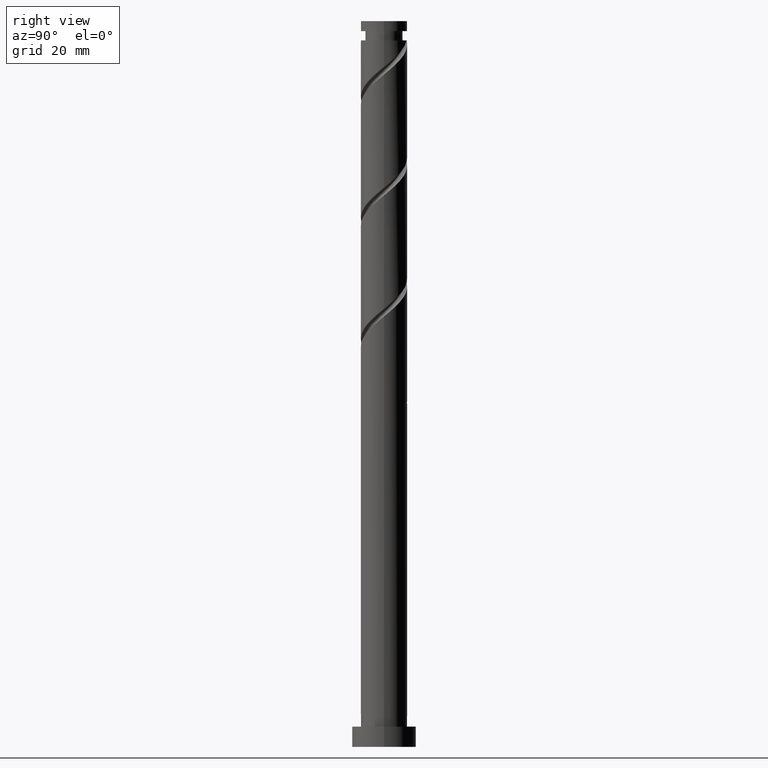
[diagram: clean part render]
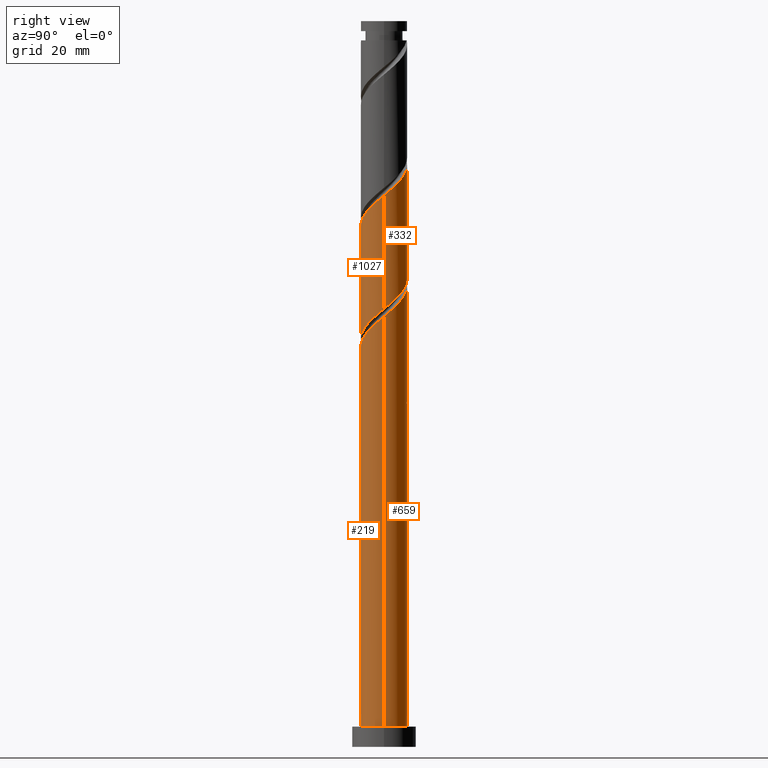
[diagram: same view with one multi-face feature highlighted, each face labeled with its STEP entity id]
A machine part, right view. The highlighted faces form ONE feature: a constant-radius fillet chain: 4 tangent blend faces with common blend radius 8 mm. The faces share edges in the B-rep.
Their STEP definitions:
[1] entity #332 (Cylinder):
#33 = VERTEX_POINT ( 'NONE', #1726 ) ;
#74 = VECTOR ( 'NONE', #1225, 1000.000000000000000 ) ;
#76 = VERTEX_POINT ( 'NONE', #1139 ) ;
#146 = CARTESIAN_POINT ( 'NONE',  ( -1.301061453335721207, 7.953037794909570302, 162.4030830510697001 ) ) ;
#165 = EDGE_LOOP ( 'NONE', ( #429, #693, #274, #861 ) ) ;
#194 = VERTEX_POINT ( 'NONE', #1755 ) ;
#196 = EDGE_CURVE ( 'NONE', #76, #1804, #1370, .T. ) ;
#205 = LINE ( 'NONE', #214, #74 ) ;
#206 = CARTESIAN_POINT ( 'NONE',  ( -4.847993655035590876, 6.437431832132343601, 165.6082112561979329 ) ) ;
#211 = CARTESIAN_POINT ( 'NONE',  ( 6.390495706159073919, 4.812646322924886810, 155.1915445895312757 ) ) ;
#214 = CARTESIAN_POINT ( 'NONE',  ( 8.000000000000000000, 9.797174393178825657E-16, 250.0000000000000000 ) ) ;
#220 = CARTESIAN_POINT ( 'NONE',  ( 5.053057863439632591, 6.202145292455741199, 156.7941086920953921 ) ) ;
#224 = CARTESIAN_POINT ( 'NONE',  ( -8.000000000000000000, 5.623432888515860977E-15, 171.7438254397821424 ) ) ;
#235 = CARTESIAN_POINT ( 'NONE',  ( 1.301061453335727203, 7.953037794909581848, 199.2620574100440933 ) ) ;
#246 = CARTESIAN_POINT ( 'NONE',  ( -0.6400315509080659604, 8.033301356631564971, 200.8646215126081529 ) ) ;
#256 = CARTESIAN_POINT ( 'NONE',  ( 8.000000000000012434, 1.435770099195527774E-15, 189.9213150213316794 ) ) ;
#262 = CARTESIAN_POINT ( 'NONE',  ( 8.000000000000000000, -8.734268103439527594E-15, 150.9104921064488281 ) ) ;
#274 = ORIENTED_EDGE ( 'NONE', *, *, #196, .F. ) ;
#303 = CARTESIAN_POINT ( 'NONE',  ( -8.000000000000012434, 4.905547838918053407E-15, 210.7546483546649938 ) ) ;
#332 = ADVANCED_FACE ( 'NONE', ( #407 ), #979, .T. ) ;
#353 = CARTESIAN_POINT ( 'NONE',  ( -2.233801474206662085, 7.681805189786587107, 163.2043651023517441 ) ) ;
#360 = CARTESIAN_POINT ( 'NONE',  ( 6.974856767235934285, 4.036699660509708742, 154.3902625382492602 ) ) ;
#369 = CARTESIAN_POINT ( 'NONE',  ( 7.738225566650696052, 2.250208024216790559, 152.7876984356850869 ) ) ;
#372 = CARTESIAN_POINT ( 'NONE',  ( 6.247698045502859010, 5.090170940630192042, 194.4543651023517441 ) ) ;
#376 = AXIS2_PLACEMENT_3D ( 'NONE', #721, #1550, #856 ) ;
#383 = CARTESIAN_POINT ( 'NONE',  ( -5.806134645082218881, 5.588592985340075536, 205.6723138203004737 ) ) ;
#390 = CARTESIAN_POINT ( 'NONE',  ( 7.895051195043946812, 1.291575250473281811, 151.9864163844030998 ) ) ;
#403 = CARTESIAN_POINT ( 'NONE',  ( 4.007267575056607356, 6.924002208397983082, 196.8582112561979045 ) ) ;
#407 = FACE_OUTER_BOUND ( 'NONE', #165, .T. ) ;
#429 = ORIENTED_EDGE ( 'NONE', *, *, #577, .F. ) ;
#465 =( BOUNDED_CURVE ( )  B_SPLINE_CURVE ( 2, ( #256, #1637, #941, #820, #1115, #1668, #1366, #372, #1395, #1772, #403, #1506, #676, #235, #833, #246, #502, #797, #1234, #519, #1254, #383, #950, #1516, #1807, #971, #1405, #709, #303 ),
 .UNSPECIFIED., .F., .T. ) 
 B_SPLINE_CURVE_WITH_KNOTS ( ( 3, 2, 2, 2, 2, 2, 2, 2, 2, 2, 2, 2, 2, 2, 3 ),
 ( 0.4295271625973831608, 0.4326923076923077094, 0.4423076923076922906, 0.4519230769230768718, 0.4615384615384615641, 0.4711538461538461453, 0.4807692307692307265, 0.4903846153846154188, 0.5000000000000000000, 0.5096153846153845812, 0.5192307692307691624, 0.5288461538461538547, 0.5384615384615384359, 0.5480769230769231282, 0.5545271625973832164 ),
 .UNSPECIFIED. ) 
 CURVE ( )  GEOMETRIC_REPRESENTATION_ITEM ( )  RATIONAL_B_SPLINE_CURVE ( ( 0.9061636035682792967, 0.9069090390690678349, 0.9090909090909243817, 0.9024626128164281447, 0.9090909090909243817, 0.9024626128164281447, 0.9090909090909243817, 0.9024626128164281447, 0.9090909090909243817, 0.9024626128164281447, 0.9090909090909243817, 0.9024626128164281447, 0.9090909090909243817, 0.9024626128164281447, 0.9090909090909243817, 0.9024626128164281447, 0.9090909090909243817, 0.9024626128164281447, 0.9090909090909243817, 0.9024626128164281447, 0.9090909090909243817, 0.9024626128164281447, 0.9090909090909243817, 0.9024626128164281447, 0.9090909090909243817, 0.9024626128164281447, 0.9090909090909243817, 0.9046444828382846914, 0.9061636035682792967 ) ) 
 REPRESENTATION_ITEM ( '' )  );
#483 = CARTESIAN_POINT ( 'NONE',  ( -7.590945600825408590, 2.525380146692649319, 169.6146215126081813 ) ) ;
#502 = CARTESIAN_POINT ( 'NONE',  ( -1.591979899370593587, 7.840000000000014069, 201.6659035638902537 ) ) ;
#510 = CARTESIAN_POINT ( 'NONE',  ( 7.356541166943314281, 3.143453842363254758, 153.5889804869671593 ) ) ;
#519 = CARTESIAN_POINT ( 'NONE',  ( -4.299981081797050741, 6.815697599571432619, 204.0697497177363857 ) ) ;
#577 = EDGE_CURVE ( 'NONE', #33, #194, #465, .T. ) ;
#614 = VECTOR ( 'NONE', #1649, 1000.000000000000000 ) ;
#624 = CARTESIAN_POINT ( 'NONE',  ( -7.897582266626952396, 1.603672477308133004, 170.4159035638901969 ) ) ;
#653 = CARTESIAN_POINT ( 'NONE',  ( -8.000000000000000000, 0.000000000000000000, 250.0000000000000000 ) ) ;
#676 = CARTESIAN_POINT ( 'NONE',  ( 2.233801474206672744, 7.681805189786598653, 198.4607753587620209 ) ) ;
#685 = CARTESIAN_POINT ( 'NONE',  ( 8.000000000000000000, -8.734268103439527594E-15, 150.9104921064488565 ) ) ;
#693 = ORIENTED_EDGE ( 'NONE', *, *, #1006, .T. ) ;
#709 = CARTESIAN_POINT ( 'NONE',  ( -8.000000000000010658, 0.6500515082963769231, 210.2149476173166533 ) ) ;
#721 = CARTESIAN_POINT ( 'NONE',  ( 0.000000000000000000, 0.000000000000000000, 250.0000000000000000 ) ) ;
#788 = CARTESIAN_POINT ( 'NONE',  ( -8.000000000000001776, 0.3181850426941489340, 171.4796545241491970 ) ) ;
#797 = CARTESIAN_POINT ( 'NONE',  ( -2.543928247833118661, 7.646698643368457837, 202.4671856151722693 ) ) ;
#820 = CARTESIAN_POINT ( 'NONE',  ( 7.897582266626965719, 1.603672477308132560, 191.2492368972235113 ) ) ;
#833 = CARTESIAN_POINT ( 'NONE',  ( 0.3305149512138344514, 7.993169575770573410, 200.0633394613261657 ) ) ;
#856 = DIRECTION ( 'NONE',  ( -1.000000000000000000, 0.000000000000000000, 0.000000000000000000 ) ) ;
#861 = ORIENTED_EDGE ( 'NONE', *, *, #1671, .F. ) ;
#941 = CARTESIAN_POINT ( 'NONE',  ( 7.974729545032094080, 0.6353650002891780835, 190.4479548459415525 ) ) ;
#950 = CARTESIAN_POINT ( 'NONE',  ( -6.390495706159080136, 4.812646322924901909, 206.4735958715825461 ) ) ;
#971 = CARTESIAN_POINT ( 'NONE',  ( -7.738225566650707599, 2.250208024216801217, 208.8774420254286497 ) ) ;
#979 = CYLINDRICAL_SURFACE ( 'NONE', #376, 8.000000000000000000 ) ;
#1006 = EDGE_CURVE ( 'NONE', #33, #1804, #205, .T. ) ;
#1023 = CARTESIAN_POINT ( 'NONE',  ( 1.591979899370595364, 7.839999999999999858, 159.9992368972235397 ) ) ;
#1064 = CARTESIAN_POINT ( 'NONE',  ( 4.299981081797046301, 6.815697599571421961, 157.5953907433774361 ) ) ;
#1086 = CARTESIAN_POINT ( 'NONE',  ( -5.547845850269218282, 5.763801386381266489, 166.4094933074800622 ) ) ;
#1115 = CARTESIAN_POINT ( 'NONE',  ( 7.590945600825421913, 2.525380146692645766, 192.0505189485056121 ) ) ;
#1139 = CARTESIAN_POINT ( 'NONE',  ( -8.000000000000000000, 5.623432888515860977E-15, 171.7438254397821424 ) ) ;
#1225 = DIRECTION ( 'NONE',  ( -0.000000000000000000, -0.000000000000000000, -1.000000000000000000 ) ) ;
#1234 = CARTESIAN_POINT ( 'NONE',  ( -3.421954664815085145, 7.231198121469945228, 203.2684676664543986 ) ) ;
#1254 = CARTESIAN_POINT ( 'NONE',  ( -5.053057863439636144, 6.202145292455754522, 204.8710317690184013 ) ) ;
#1309 = CARTESIAN_POINT ( 'NONE',  ( 2.543928247833120437, 7.646698643368446291, 159.1979548459414673 ) ) ;
#1339 = CARTESIAN_POINT ( 'NONE',  ( -7.974729545032076317, 0.6353650002891837456, 171.2171856151722977 ) ) ;
#1349 = CARTESIAN_POINT ( 'NONE',  ( -4.007267575056594922, 6.924002208397974201, 164.8069292049158889 ) ) ;
#1363 = CARTESIAN_POINT ( 'NONE',  ( 5.806134645082211776, 5.588592985340064878, 155.9928266408133481 ) ) ;
#1366 = CARTESIAN_POINT ( 'NONE',  ( 6.766003490263366338, 4.268629378353683279, 193.6530830510697285 ) ) ;
#1370 =( BOUNDED_CURVE ( )  B_SPLINE_CURVE ( 2, ( #224, #788, #1339, #624, #483, #1619, #1781, #1482, #1086, #206, #1349, #1630, #353, #146, #1573, #1799, #1023, #1309, #1751, #1064, #220, #1363, #211, #360, #510, #369, #390, #1513, #685 ),
 .UNSPECIFIED., .F., .T. ) 
 B_SPLINE_CURVE_WITH_KNOTS ( ( 3, 2, 2, 2, 2, 2, 2, 2, 2, 2, 2, 2, 2, 2, 3 ),
 ( 0.6795271625973833274, 0.6826923076923077094, 0.6923076923076922906, 0.7019230769230768718, 0.7115384615384615641, 0.7211538461538461453, 0.7307692307692307265, 0.7403846153846154188, 0.7500000000000000000, 0.7596153846153845812, 0.7692307692307692735, 0.7788461538461538547, 0.7884615384615384359, 0.7980769230769231282, 0.8045271625973832164 ),
 .UNSPECIFIED. ) 
 CURVE ( )  GEOMETRIC_REPRESENTATION_ITEM ( )  RATIONAL_B_SPLINE_CURVE ( ( 0.9061636035682724133, 0.9069090390690610626, 0.9090909090909177204, 0.9024626128164211503, 0.9090909090909177204, 0.9024626128164211503, 0.9090909090909177204, 0.9024626128164211503, 0.9090909090909177204, 0.9024626128164211503, 0.9090909090909177204, 0.9024626128164211503, 0.9090909090909177204, 0.9024626128164211503, 0.9090909090909177204, 0.9024626128164211503, 0.9090909090909177204, 0.9024626128164211503, 0.9090909090909177204, 0.9024626128164211503, 0.9090909090909177204, 0.9024626128164211503, 0.9090909090909177204, 0.9024626128164211503, 0.9090909090909177204, 0.9024626128164211503, 0.9090909090909177204, 0.9046444828382778081, 0.9061636035682725243 ) ) 
 REPRESENTATION_ITEM ( '' )  );
#1395 = CARTESIAN_POINT ( 'NONE',  ( 5.547845850269232493, 5.763801386381272707, 195.2556471536338734 ) ) ;
#1405 = CARTESIAN_POINT ( 'NONE',  ( -7.895051195043959247, 1.291575250473287140, 209.6787240767107505 ) ) ;
#1482 = CARTESIAN_POINT ( 'NONE',  ( -6.247698045502846576, 5.090170940630189378, 167.2107753587620493 ) ) ;
#1502 = LINE ( 'NONE', #653, #614 ) ;
#1506 = CARTESIAN_POINT ( 'NONE',  ( 3.166541495077610957, 7.410572584663614570, 197.6594933074799485 ) ) ;
#1513 = CARTESIAN_POINT ( 'NONE',  ( 8.000000000000000000, 0.6500515082963715940, 151.4501928437971685 ) ) ;
#1516 = CARTESIAN_POINT ( 'NONE',  ( -6.974856767235942279, 4.036699660509722953, 207.2748779228645901 ) ) ;
#1550 = DIRECTION ( 'NONE',  ( -0.000000000000000000, -0.000000000000000000, -1.000000000000000000 ) ) ;
#1573 = CARTESIAN_POINT ( 'NONE',  ( -0.3305149512138251811, 7.993169575770560975, 161.6018009997876561 ) ) ;
#1619 = CARTESIAN_POINT ( 'NONE',  ( -7.284308935023863896, 3.447087816077163858, 168.8133394613261373 ) ) ;
#1630 = CARTESIAN_POINT ( 'NONE',  ( -3.166541495077603852, 7.410572584663606577, 164.0056471536338165 ) ) ;
#1637 = CARTESIAN_POINT ( 'NONE',  ( 8.000000000000014211, 0.3181850426941276733, 190.1854859369645965 ) ) ;
#1649 = DIRECTION ( 'NONE',  ( -0.000000000000000000, -0.000000000000000000, -1.000000000000000000 ) ) ;
#1668 = CARTESIAN_POINT ( 'NONE',  ( 7.284308935023878107, 3.447087816077164302, 192.8518009997876561 ) ) ;
#1671 = EDGE_CURVE ( 'NONE', #194, #76, #1502, .T. ) ;
#1726 = CARTESIAN_POINT ( 'NONE',  ( 8.000000000000012434, 1.435770099195527774E-15, 189.9213150213316510 ) ) ;
#1751 = CARTESIAN_POINT ( 'NONE',  ( 3.421954664815087366, 7.231198121469931905, 158.3966727946594517 ) ) ;
#1755 = CARTESIAN_POINT ( 'NONE',  ( -8.000000000000012434, 4.905547838918053407E-15, 210.7546483546649938 ) ) ;
#1772 = CARTESIAN_POINT ( 'NONE',  ( 4.847993655035605087, 6.437431832132348042, 196.0569292049158321 ) ) ;
#1781 = CARTESIAN_POINT ( 'NONE',  ( -6.766003490263353903, 4.268629378353675285, 168.0120574100440933 ) ) ;
#1799 = CARTESIAN_POINT ( 'NONE',  ( 0.6400315509080708454, 8.033301356631552537, 160.8005189485056405 ) ) ;
#1804 = VERTEX_POINT ( 'NONE', #262 ) ;
#1807 = CARTESIAN_POINT ( 'NONE',  ( -7.356541166943324050, 3.143453842363264084, 208.0761599741466625 ) ) ;
[2] entity #1027 (Cylinder):
#33 = VERTEX_POINT ( 'NONE', #1726 ) ;
#36 =( BOUNDED_CURVE ( )  B_SPLINE_CURVE ( 2, ( #1469, #1291, #580, #304, #517, #1487, #230, #930, #629, #509, #1345, #795, #1625, #1373, #1205, #1196, #1073, #923, #201, #913, #1614, #381, #1760, #619, #339, #768, #349, #1786, #59 ),
 .UNSPECIFIED., .F., .T. ) 
 B_SPLINE_CURVE_WITH_KNOTS ( ( 3, 2, 2, 2, 2, 2, 2, 2, 2, 2, 2, 2, 2, 2, 3 ),
 ( 0.8045271625973832164, 0.8076923076923077094, 0.8173076923076922906, 0.8269230769230768718, 0.8365384615384615641, 0.8461538461538461453, 0.8557692307692307265, 0.8653846153846154188, 0.8750000000000000000, 0.8846153846153845812, 0.8942307692307692735, 0.9038461538461538547, 0.9134615384615384359, 0.9230769230769231282, 0.9295271625973833274 ),
 .UNSPECIFIED. ) 
 CURVE ( )  GEOMETRIC_REPRESENTATION_ITEM ( )  RATIONAL_B_SPLINE_CURVE ( ( 0.9061636035682725243, 0.9069090390690610626, 0.9090909090909177204, 0.9024626128164211503, 0.9090909090909177204, 0.9024626128164211503, 0.9090909090909177204, 0.9024626128164211503, 0.9090909090909177204, 0.9024626128164211503, 0.9090909090909177204, 0.9024626128164211503, 0.9090909090909177204, 0.9024626128164211503, 0.9090909090909177204, 0.9024626128164211503, 0.9090909090909177204, 0.9024626128164211503, 0.9090909090909177204, 0.9024626128164211503, 0.9090909090909177204, 0.9024626128164211503, 0.9090909090909177204, 0.9024626128164211503, 0.9090909090909177204, 0.9024626128164211503, 0.9090909090909177204, 0.9046444828382775860, 0.9061636035682724133 ) ) 
 REPRESENTATION_ITEM ( '' )  );
#48 = DIRECTION ( 'NONE',  ( -0.000000000000000000, -0.000000000000000000, -1.000000000000000000 ) ) ;
#59 = CARTESIAN_POINT ( 'NONE',  ( -8.000000000000000000, 5.623432888515860977E-15, 130.0771587731154568 ) ) ;
#62 = FACE_OUTER_BOUND ( 'NONE', #680, .T. ) ;
#66 = CARTESIAN_POINT ( 'NONE',  ( -7.284308935023874554, -3.447087816077166966, 172.0184676664543133 ) ) ;
#74 = VECTOR ( 'NONE', #1225, 1000.000000000000000 ) ;
#75 = CARTESIAN_POINT ( 'NONE',  ( 1.591979899370593809, -7.840000000000014069, 180.8325702305568825 ) ) ;
#79 = DIRECTION ( 'NONE',  ( -0.000000000000000000, -0.000000000000000000, -1.000000000000000000 ) ) ;
#84 = LINE ( 'NONE', #937, #1400 ) ;
#106 = CARTESIAN_POINT ( 'NONE',  ( -8.000000000000000000, 5.623432888515860977E-15, 130.0771587731154568 ) ) ;
#190 = CARTESIAN_POINT ( 'NONE',  ( 0.6400315509080670706, -8.033301356631564971, 180.0312881792748101 ) ) ;
#201 = CARTESIAN_POINT ( 'NONE',  ( -3.421954664815082925, -7.231198121469931905, 137.5633394613261373 ) ) ;
#205 = LINE ( 'NONE', #214, #74 ) ;
#210 = CARTESIAN_POINT ( 'NONE',  ( -4.007267575056605580, -6.924002208397983971, 176.0248779228646470 ) ) ;
#214 = CARTESIAN_POINT ( 'NONE',  ( 8.000000000000000000, 9.797174393178825657E-16, 250.0000000000000000 ) ) ;
#218 = CARTESIAN_POINT ( 'NONE',  ( -2.233801474206668303, -7.681805189786598653, 177.6274420254286497 ) ) ;
#230 = CARTESIAN_POINT ( 'NONE',  ( 6.766003490263353903, -4.268629378353677950, 147.1787240767107505 ) ) ;
#231 = ORIENTED_EDGE ( 'NONE', *, *, #1618, .F. ) ;
#238 =( BOUNDED_CURVE ( )  B_SPLINE_CURVE ( 2, ( #948, #1222, #359, #783, #1494, #66, #1635, #1362, #1063, #1082, #210, #637, #218, #775, #1212, #190, #75, #645, #1770, #1230, #756, #500, #1749, #1777, #1334, #478, #1642, #1054, #368 ),
 .UNSPECIFIED., .F., .T. ) 
 B_SPLINE_CURVE_WITH_KNOTS ( ( 3, 2, 2, 2, 2, 2, 2, 2, 2, 2, 2, 2, 2, 2, 3 ),
 ( 0.3045271625973832164, 0.3076923076923077094, 0.3173076923076922906, 0.3269230769230768718, 0.3365384615384615641, 0.3461538461538461453, 0.3557692307692307265, 0.3653846153846154188, 0.3750000000000000000, 0.3846153846153845812, 0.3942307692307692735, 0.4038461538461538547, 0.4134615384615384359, 0.4230769230769231282, 0.4295271625973831608 ),
 .UNSPECIFIED. ) 
 CURVE ( )  GEOMETRIC_REPRESENTATION_ITEM ( )  RATIONAL_B_SPLINE_CURVE ( ( 0.9061636035682792967, 0.9069090390690678349, 0.9090909090909243817, 0.9024626128164281447, 0.9090909090909243817, 0.9024626128164281447, 0.9090909090909243817, 0.9024626128164281447, 0.9090909090909243817, 0.9024626128164281447, 0.9090909090909243817, 0.9024626128164281447, 0.9090909090909243817, 0.9024626128164281447, 0.9090909090909243817, 0.9024626128164281447, 0.9090909090909243817, 0.9024626128164281447, 0.9090909090909243817, 0.9024626128164281447, 0.9090909090909243817, 0.9024626128164281447, 0.9090909090909243817, 0.9024626128164281447, 0.9090909090909243817, 0.9024626128164281447, 0.9090909090909243817, 0.9046444828382846914, 0.9061636035682792967 ) ) 
 REPRESENTATION_ITEM ( '' )  );
#262 = CARTESIAN_POINT ( 'NONE',  ( 8.000000000000000000, -8.734268103439527594E-15, 150.9104921064488281 ) ) ;
#264 = VERTEX_POINT ( 'NONE', #106 ) ;
#304 = CARTESIAN_POINT ( 'NONE',  ( 7.897582266626952396, -1.603672477308134336, 149.5825702305569394 ) ) ;
#320 = AXIS2_PLACEMENT_3D ( 'NONE', #811, #79, #1058 ) ;
#339 = CARTESIAN_POINT ( 'NONE',  ( -7.356541166943313392, -3.143453842363255646, 132.7556471536338449 ) ) ;
#349 = CARTESIAN_POINT ( 'NONE',  ( -7.895051195043946812, -1.291575250473280922, 131.1530830510697285 ) ) ;
#352 = CARTESIAN_POINT ( 'NONE',  ( -8.000000000000012434, -2.482685796525600277E-15, 169.0879816879983650 ) ) ;
#359 = CARTESIAN_POINT ( 'NONE',  ( -7.974729545032090527, -0.6353650002891810811, 169.6146215126082382 ) ) ;
#368 = CARTESIAN_POINT ( 'NONE',  ( 8.000000000000012434, 1.435770099195527774E-15, 189.9213150213316794 ) ) ;
#381 = CARTESIAN_POINT ( 'NONE',  ( -5.806134645082210888, -5.588592985340064878, 135.1594933074800053 ) ) ;
#478 = CARTESIAN_POINT ( 'NONE',  ( 7.738225566650704046, -2.250208024216805214, 188.0441086920953637 ) ) ;
#482 = ORIENTED_EDGE ( 'NONE', *, *, #1650, .T. ) ;
#500 = CARTESIAN_POINT ( 'NONE',  ( 5.806134645082217105, -5.588592985340077313, 184.8389804869671593 ) ) ;
#509 = CARTESIAN_POINT ( 'NONE',  ( 4.847993655035589100, -6.437431832132345377, 144.7748779228645901 ) ) ;
#517 = CARTESIAN_POINT ( 'NONE',  ( 7.590945600825408590, -2.525380146692651984, 148.7812881792748669 ) ) ;
#580 = CARTESIAN_POINT ( 'NONE',  ( 7.974729545032074540, -0.6353650002891882975, 150.3838522818389549 ) ) ;
#619 = CARTESIAN_POINT ( 'NONE',  ( -6.974856767235932509, -4.036699660509713183, 133.5569292049159174 ) ) ;
#629 = CARTESIAN_POINT ( 'NONE',  ( 5.547845850269218282, -5.763801386381266489, 145.5761599741466625 ) ) ;
#637 = CARTESIAN_POINT ( 'NONE',  ( -3.166541495077610513, -7.410572584663614570, 176.8261599741466341 ) ) ;
#645 = CARTESIAN_POINT ( 'NONE',  ( 2.543928247833117329, -7.646698643368457837, 181.6338522818389549 ) ) ;
#680 = EDGE_LOOP ( 'NONE', ( #1138, #231, #482, #823 ) ) ;
#756 = CARTESIAN_POINT ( 'NONE',  ( 5.053057863439636144, -6.202145292455754522, 184.0376984356851153 ) ) ;
#768 = CARTESIAN_POINT ( 'NONE',  ( -7.738225566650695164, -2.250208024216795888, 131.9543651023518009 ) ) ;
#775 = CARTESIAN_POINT ( 'NONE',  ( -1.301061453335726981, -7.953037794909581848, 178.4287240767106937 ) ) ;
#783 = CARTESIAN_POINT ( 'NONE',  ( -7.897582266626965719, -1.603672477308133448, 170.4159035638902537 ) ) ;
#795 = CARTESIAN_POINT ( 'NONE',  ( 3.166541495077602519, -7.410572584663606577, 143.1723138203005021 ) ) ;
#811 = CARTESIAN_POINT ( 'NONE',  ( 0.000000000000000000, 0.000000000000000000, 250.0000000000000000 ) ) ;
#823 = ORIENTED_EDGE ( 'NONE', *, *, #1577, .F. ) ;
#913 = CARTESIAN_POINT ( 'NONE',  ( -4.299981081797044524, -6.815697599571421961, 136.7620574100440933 ) ) ;
#923 = CARTESIAN_POINT ( 'NONE',  ( -2.543928247833118661, -7.646698643368448067, 138.3646215126082097 ) ) ;
#930 = CARTESIAN_POINT ( 'NONE',  ( 6.247698045502843023, -5.090170940630192931, 146.3774420254286781 ) ) ;
#937 = CARTESIAN_POINT ( 'NONE',  ( -8.000000000000000000, 0.000000000000000000, 250.0000000000000000 ) ) ;
#948 = CARTESIAN_POINT ( 'NONE',  ( -8.000000000000012434, -2.482685796525600277E-15, 169.0879816879983650 ) ) ;
#985 = VERTEX_POINT ( 'NONE', #352 ) ;
#1006 = EDGE_CURVE ( 'NONE', #33, #1804, #205, .T. ) ;
#1027 = ADVANCED_FACE ( 'NONE', ( #62 ), #1208, .T. ) ;
#1054 = CARTESIAN_POINT ( 'NONE',  ( 8.000000000000010658, -0.6500515082963823632, 189.3816142839833390 ) ) ;
#1058 = DIRECTION ( 'NONE',  ( -1.000000000000000000, 0.000000000000000000, 0.000000000000000000 ) ) ;
#1063 = CARTESIAN_POINT ( 'NONE',  ( -5.547845850269232493, -5.763801386381274483, 174.4223138203005021 ) ) ;
#1073 = CARTESIAN_POINT ( 'NONE',  ( -1.591979899370594698, -7.839999999999999858, 139.1659035638902537 ) ) ;
#1082 = CARTESIAN_POINT ( 'NONE',  ( -4.847993655035601535, -6.437431832132351595, 175.2235958715824893 ) ) ;
#1138 = ORIENTED_EDGE ( 'NONE', *, *, #1006, .F. ) ;
#1196 = CARTESIAN_POINT ( 'NONE',  ( -0.6400315509080729548, -8.033301356631552537, 139.9671856151722977 ) ) ;
#1205 = CARTESIAN_POINT ( 'NONE',  ( 0.3305149512138224610, -7.993169575770562751, 140.7684676664543417 ) ) ;
#1208 = CYLINDRICAL_SURFACE ( 'NONE', #320, 8.000000000000000000 ) ;
#1212 = CARTESIAN_POINT ( 'NONE',  ( -0.3305149512138301215, -7.993169575770573410, 179.2300061279927945 ) ) ;
#1222 = CARTESIAN_POINT ( 'NONE',  ( -8.000000000000012434, -0.3181850426941350007, 169.3521526036313674 ) ) ;
#1225 = DIRECTION ( 'NONE',  ( -0.000000000000000000, -0.000000000000000000, -1.000000000000000000 ) ) ;
#1230 = CARTESIAN_POINT ( 'NONE',  ( 4.299981081797047189, -6.815697599571435283, 183.2364163844030713 ) ) ;
#1291 = CARTESIAN_POINT ( 'NONE',  ( 8.000000000000000000, -0.3181850426941417176, 150.6463211908158542 ) ) ;
#1334 = CARTESIAN_POINT ( 'NONE',  ( 7.356541166943324050, -3.143453842363264084, 187.2428266408133197 ) ) ;
#1345 = CARTESIAN_POINT ( 'NONE',  ( 4.007267575056594033, -6.924002208397975089, 143.9735958715825745 ) ) ;
#1362 = CARTESIAN_POINT ( 'NONE',  ( -6.247698045502857234, -5.090170940630195595, 173.6210317690184013 ) ) ;
#1373 = CARTESIAN_POINT ( 'NONE',  ( 1.301061453335717877, -7.953037794909570302, 141.5697497177363857 ) ) ;
#1400 = VECTOR ( 'NONE', #48, 1000.000000000000000 ) ;
#1469 = CARTESIAN_POINT ( 'NONE',  ( 8.000000000000000000, -8.734268103439527594E-15, 150.9104921064488565 ) ) ;
#1487 = CARTESIAN_POINT ( 'NONE',  ( 7.284308935023863896, -3.447087816077163414, 147.9800061279927945 ) ) ;
#1494 = CARTESIAN_POINT ( 'NONE',  ( -7.590945600825421025, -2.525380146692649763, 171.2171856151723262 ) ) ;
#1577 = EDGE_CURVE ( 'NONE', #1804, #264, #36, .T. ) ;
#1614 = CARTESIAN_POINT ( 'NONE',  ( -5.053057863439629038, -6.202145292455744752, 135.9607753587620493 ) ) ;
#1618 = EDGE_CURVE ( 'NONE', #985, #33, #238, .T. ) ;
#1625 = CARTESIAN_POINT ( 'NONE',  ( 2.233801474206661641, -7.681805189786587107, 142.3710317690184013 ) ) ;
#1635 = CARTESIAN_POINT ( 'NONE',  ( -6.766003490263367226, -4.268629378353682391, 172.8197497177364141 ) ) ;
#1642 = CARTESIAN_POINT ( 'NONE',  ( 7.895051195043959247, -1.291575250473287584, 188.8453907433774077 ) ) ;
#1650 = EDGE_CURVE ( 'NONE', #985, #264, #84, .T. ) ;
#1726 = CARTESIAN_POINT ( 'NONE',  ( 8.000000000000012434, 1.435770099195527774E-15, 189.9213150213316510 ) ) ;
#1749 = CARTESIAN_POINT ( 'NONE',  ( 6.390495706159080136, -4.812646322924902798, 185.6402625382492602 ) ) ;
#1760 = CARTESIAN_POINT ( 'NONE',  ( -6.390495706159072142, -4.812646322924889475, 134.3582112561979613 ) ) ;
#1770 = CARTESIAN_POINT ( 'NONE',  ( 3.421954664815082481, -7.231198121469948781, 182.4351343331209989 ) ) ;
#1777 = CARTESIAN_POINT ( 'NONE',  ( 6.974856767235939614, -4.036699660509726506, 186.4415445895312473 ) ) ;
#1786 = CARTESIAN_POINT ( 'NONE',  ( -8.000000000000001776, -0.6500515082963619351, 130.6168595104637973 ) ) ;
#1804 = VERTEX_POINT ( 'NONE', #262 ) ;
[3] entity #659 (Cylinder):
#1 = EDGE_CURVE ( 'NONE', #95, #1231, #1303, .T. ) ;
#6 = CARTESIAN_POINT ( 'NONE',  ( 6.247698045502859010, 5.090170940630192042, 152.7876984356850585 ) ) ;
#12 = CARTESIAN_POINT ( 'NONE',  ( -3.421954664815085145, 7.231198121469945228, 119.9351343331210273 ) ) ;
#21 = CARTESIAN_POINT ( 'NONE',  ( 7.897582266626965719, 1.603672477308132560, 149.5825702305569109 ) ) ;
#40 = CARTESIAN_POINT ( 'NONE',  ( -5.806134645082218881, 5.588592985340075536, 122.3389804869671309 ) ) ;
#48 = DIRECTION ( 'NONE',  ( -0.000000000000000000, -0.000000000000000000, -1.000000000000000000 ) ) ;
#84 = LINE ( 'NONE', #937, #1400 ) ;
#95 = VERTEX_POINT ( 'NONE', #1000 ) ;
#106 = CARTESIAN_POINT ( 'NONE',  ( -8.000000000000000000, 5.623432888515860977E-15, 130.0771587731154568 ) ) ;
#121 = CARTESIAN_POINT ( 'NONE',  ( 0.6400315509080708454, 8.033301356631552537, 119.1338522818389691 ) ) ;
#128 = CYLINDRICAL_SURFACE ( 'NONE', #495, 8.000000000000000000 ) ;
#136 = CARTESIAN_POINT ( 'NONE',  ( -7.284308935023863896, 3.447087816077163858, 127.1466727946594517 ) ) ;
#148 = CARTESIAN_POINT ( 'NONE',  ( 1.591979899370595142, 7.839999999999998082, 118.3325702305569109 ) ) ;
#155 = CARTESIAN_POINT ( 'NONE',  ( 5.547845850269232493, 5.763801386381272707, 153.5889804869671877 ) ) ;
#163 = CARTESIAN_POINT ( 'NONE',  ( 1.301061453335727203, 7.953037794909581848, 157.5953907433774077 ) ) ;
#171 = CARTESIAN_POINT ( 'NONE',  ( 2.233801474206672744, 7.681805189786598653, 156.7941086920954206 ) ) ;
#180 = CARTESIAN_POINT ( 'NONE',  ( -8.000000000000010658, 0.6500515082963685964, 126.8816142839833816 ) ) ;
#249 = EDGE_CURVE ( 'NONE', #875, #654, #706, .T. ) ;
#253 = VERTEX_POINT ( 'NONE', #817 ) ;
#258 = CARTESIAN_POINT ( 'NONE',  ( 8.000000000000012434, 1.435770099195527774E-15, 148.2546483546650222 ) ) ;
#264 = VERTEX_POINT ( 'NONE', #106 ) ;
#277 = CARTESIAN_POINT ( 'NONE',  ( -6.247698045502846576, 5.090170940630189378, 125.5441086920953921 ) ) ;
#279 = DIRECTION ( 'NONE',  ( 0.000000000000000000, -0.000000000000000000, -1.000000000000000000 ) ) ;
#311 = CARTESIAN_POINT ( 'NONE',  ( 7.974729545032094080, 0.6353650002891780835, 148.7812881792748669 ) ) ;
#317 = CARTESIAN_POINT ( 'NONE',  ( -7.895051195043959247, 1.291575250473287140, 168.0120574100440649 ) ) ;
#352 = CARTESIAN_POINT ( 'NONE',  ( -8.000000000000012434, -2.482685796525600277E-15, 169.0879816879983650 ) ) ;
#370 = VERTEX_POINT ( 'NONE', #258 ) ;
#450 = CARTESIAN_POINT ( 'NONE',  ( -7.738225566650707599, 2.250208024216801217, 167.2107753587619925 ) ) ;
#458 = CARTESIAN_POINT ( 'NONE',  ( -7.738225566650707599, 2.250208024216801217, 125.5441086920953353 ) ) ;
#468 = CARTESIAN_POINT ( 'NONE',  ( -8.000000000000010658, 0.6500515082963769231, 168.5482809506500246 ) ) ;
#495 = AXIS2_PLACEMENT_3D ( 'NONE', #571, #718, #1547 ) ;
#522 = AXIS2_PLACEMENT_3D ( 'NONE', #1813, #1523, #1823 ) ;
#554 = EDGE_CURVE ( 'NONE', #370, #875, #1215, .T. ) ;
#558 = AXIS2_PLACEMENT_3D ( 'NONE', #1559, #279, #978 ) ;
#571 = CARTESIAN_POINT ( 'NONE',  ( 0.000000000000000000, 0.000000000000000000, 250.0000000000000000 ) ) ;
#587 = CARTESIAN_POINT ( 'NONE',  ( -7.895051195043959247, 1.291575250473287140, 126.3453907433774503 ) ) ;
#595 = CARTESIAN_POINT ( 'NONE',  ( 4.007267575056607356, 6.924002208397983082, 155.1915445895313042 ) ) ;
#610 = CARTESIAN_POINT ( 'NONE',  ( -6.974856767235942279, 4.036699660509722953, 165.6082112561979329 ) ) ;
#613 = ORIENTED_EDGE ( 'NONE', *, *, #1297, .F. ) ;
#654 = VERTEX_POINT ( 'NONE', #1414 ) ;
#659 = ADVANCED_FACE ( 'NONE', ( #841 ), #128, .T. ) ;
#706 = CIRCLE ( 'NONE', #522, 8.000000000000000000 ) ;
#710 = CARTESIAN_POINT ( 'NONE',  ( -5.547845850269218282, 5.763801386381266489, 124.7428266408133339 ) ) ;
#718 = DIRECTION ( 'NONE',  ( -0.000000000000000000, -0.000000000000000000, -1.000000000000000000 ) ) ;
#727 = CARTESIAN_POINT ( 'NONE',  ( -5.053057863439636144, 6.202145292455754522, 163.2043651023518009 ) ) ;
#734 = CARTESIAN_POINT ( 'NONE',  ( -1.591979899370593587, 7.840000000000014069, 159.9992368972236250 ) ) ;
#740 = CARTESIAN_POINT ( 'NONE',  ( 7.590945600825421913, 2.525380146692645766, 150.3838522818389833 ) ) ;
#810 = CARTESIAN_POINT ( 'NONE',  ( 8.000000000000000000, 9.797174393178825657E-16, 250.0000000000000000 ) ) ;
#817 = CARTESIAN_POINT ( 'NONE',  ( -8.000000000000012434, -2.482685796525600277E-15, 127.4213150213316936 ) ) ;
#821 = CARTESIAN_POINT ( 'NONE',  ( -0.3305149512138251811, 7.993169575770560975, 119.9351343331210415 ) ) ;
#834 = CARTESIAN_POINT ( 'NONE',  ( -8.000000000000000000, 5.623432888515860977E-15, 130.0771587731154568 ) ) ;
#841 = FACE_OUTER_BOUND ( 'NONE', #1411, .T. ) ;
#842 = CARTESIAN_POINT ( 'NONE',  ( -2.233801474206662085, 7.681805189786587107, 121.5376984356851011 ) ) ;
#852 = CARTESIAN_POINT ( 'NONE',  ( -7.974729545032076317, 0.6353650002891837456, 129.5505189485056405 ) ) ;
#873 = CARTESIAN_POINT ( 'NONE',  ( -2.543928247833118661, 7.646698643368457837, 119.1338522818389549 ) ) ;
#875 = VERTEX_POINT ( 'NONE', #1190 ) ;
#880 = CARTESIAN_POINT ( 'NONE',  ( -8.000000000000000000, 0.000000000000000000, 250.0000000000000000 ) ) ;
#889 = CARTESIAN_POINT ( 'NONE',  ( -8.000000000000012434, -2.482685796525600277E-15, 169.0879816879983650 ) ) ;
#908 = ORIENTED_EDGE ( 'NONE', *, *, #249, .T. ) ;
#937 = CARTESIAN_POINT ( 'NONE',  ( -8.000000000000000000, 0.000000000000000000, 250.0000000000000000 ) ) ;
#978 = DIRECTION ( 'NONE',  ( -1.000000000000000000, 0.000000000000000000, 0.000000000000000000 ) ) ;
#985 = VERTEX_POINT ( 'NONE', #352 ) ;
#1000 = CARTESIAN_POINT ( 'NONE',  ( -1.591979899370593143, 7.840000000000014957, 118.3325702305569109 ) ) ;
#1015 = CARTESIAN_POINT ( 'NONE',  ( -0.6400315509080659604, 8.033301356631564971, 159.1979548459414957 ) ) ;
#1025 = CARTESIAN_POINT ( 'NONE',  ( -5.053057863439636144, 6.202145292455754522, 121.5376984356851153 ) ) ;
#1031 = CARTESIAN_POINT ( 'NONE',  ( -3.421954664815085145, 7.231198121469945228, 161.6018009997876561 ) ) ;
#1039 = CARTESIAN_POINT ( 'NONE',  ( -8.000000000000012434, -2.482685796525600277E-15, 127.4213150213316936 ) ) ;
#1068 = VECTOR ( 'NONE', #1453, 1000.000000000000000 ) ;
#1127 = CARTESIAN_POINT ( 'NONE',  ( -6.766003490263353903, 4.268629378353675285, 126.3453907433774077 ) ) ;
#1156 = LINE ( 'NONE', #880, #1068 ) ;
#1164 = CARTESIAN_POINT ( 'NONE',  ( -6.390495706159080136, 4.812646322924901909, 164.8069292049159174 ) ) ;
#1171 = CARTESIAN_POINT ( 'NONE',  ( -4.299981081797050741, 6.815697599571432619, 162.4030830510697001 ) ) ;
#1179 = CARTESIAN_POINT ( 'NONE',  ( -1.591979899370593143, 7.840000000000014957, 118.3325702305569109 ) ) ;
#1190 = CARTESIAN_POINT ( 'NONE',  ( 8.000000000000000000, 9.797174393178825657E-16, 7.000000000000000000 ) ) ;
#1215 = LINE ( 'NONE', #810, #1624 ) ;
#1231 = VERTEX_POINT ( 'NONE', #148 ) ;
#1243 = CARTESIAN_POINT ( 'NONE',  ( -8.000000000000001776, 0.3181850426941489340, 129.8129878574825113 ) ) ;
#1255 = CARTESIAN_POINT ( 'NONE',  ( -4.847993655035590876, 6.437431832132343601, 123.9415445895312757 ) ) ;
#1280 = ORIENTED_EDGE ( 'NONE', *, *, #1413, .F. ) ;
#1283 = CARTESIAN_POINT ( 'NONE',  ( -4.007267575056594922, 6.924002208397974201, 123.1402625382492175 ) ) ;
#1297 = EDGE_CURVE ( 'NONE', #264, #1231, #1633, .T. ) ;
#1300 = CARTESIAN_POINT ( 'NONE',  ( -6.390495706159080136, 4.812646322924901909, 123.1402625382492317 ) ) ;
#1303 = CIRCLE ( 'NONE', #558, 8.000000000000000000 ) ;
#1311 = CARTESIAN_POINT ( 'NONE',  ( -6.974856767235942279, 4.036699660509722953, 123.9415445895312757 ) ) ;
#1313 = ORIENTED_EDGE ( 'NONE', *, *, #554, .T. ) ;
#1317 = CARTESIAN_POINT ( 'NONE',  ( -5.806134645082218881, 5.588592985340075536, 164.0056471536337881 ) ) ;
#1326 = CARTESIAN_POINT ( 'NONE',  ( 7.284308935023878107, 3.447087816077164302, 151.1851343331209705 ) ) ;
#1400 = VECTOR ( 'NONE', #48, 1000.000000000000000 ) ;
#1411 = EDGE_LOOP ( 'NONE', ( #1456, #1313, #908, #1514, #1280, #1666, #613, #1554 ) ) ;
#1413 = EDGE_CURVE ( 'NONE', #95, #253, #1448, .T. ) ;
#1414 = CARTESIAN_POINT ( 'NONE',  ( -8.000000000000000000, 0.000000000000000000, 7.000000000000000000 ) ) ;
#1423 = CARTESIAN_POINT ( 'NONE',  ( -7.590945600825408590, 2.525380146692649319, 127.9479548459415099 ) ) ;
#1434 = EDGE_CURVE ( 'NONE', #253, #654, #1156, .T. ) ;
#1439 = CARTESIAN_POINT ( 'NONE',  ( 8.000000000000014211, 0.3181850426941332244, 148.5188192702979393 ) ) ;
#1445 = CARTESIAN_POINT ( 'NONE',  ( 6.766003490263366338, 4.268629378353683279, 151.9864163844031282 ) ) ;
#1448 =( BOUNDED_CURVE ( )  B_SPLINE_CURVE ( 2, ( #1179, #873, #12, #1742, #1025, #40, #1300, #1311, #1582, #458, #587, #180, #1039 ),
 .UNSPECIFIED., .F., .T. ) 
 B_SPLINE_CURVE_WITH_KNOTS ( ( 3, 2, 2, 2, 2, 2, 3 ),
 ( 0.000000000000000000, 0.009615384615384581224, 0.01923076923076927347, 0.02884615384615385469, 0.03846153846153843592, 0.04807692307692312816, 0.05452716259738329962 ),
 .UNSPECIFIED. ) 
 CURVE ( )  GEOMETRIC_REPRESENTATION_ITEM ( )  RATIONAL_B_SPLINE_CURVE ( ( 0.9090909090909243817, 0.9024626128164281447, 0.9090909090909243817, 0.9024626128164281447, 0.9090909090909243817, 0.9024626128164281447, 0.9090909090909243817, 0.9024626128164281447, 0.9090909090909243817, 0.9024626128164281447, 0.9090909090909243817, 0.9046444828382845804, 0.9061636035682792967 ) ) 
 REPRESENTATION_ITEM ( '' )  );
#1453 = DIRECTION ( 'NONE',  ( -0.000000000000000000, -0.000000000000000000, -1.000000000000000000 ) ) ;
#1456 = ORIENTED_EDGE ( 'NONE', *, *, #1462, .F. ) ;
#1462 = EDGE_CURVE ( 'NONE', #370, #985, #1692, .T. ) ;
#1514 = ORIENTED_EDGE ( 'NONE', *, *, #1434, .F. ) ;
#1523 = DIRECTION ( 'NONE',  ( 0.000000000000000000, 0.000000000000000000, 1.000000000000000000 ) ) ;
#1547 = DIRECTION ( 'NONE',  ( -1.000000000000000000, 0.000000000000000000, 0.000000000000000000 ) ) ;
#1554 = ORIENTED_EDGE ( 'NONE', *, *, #1650, .F. ) ;
#1559 = CARTESIAN_POINT ( 'NONE',  ( 0.000000000000000000, 0.000000000000000000, 118.3325702305569394 ) ) ;
#1582 = CARTESIAN_POINT ( 'NONE',  ( -7.356541166943324050, 3.143453842363264084, 124.7428266408133481 ) ) ;
#1589 = CARTESIAN_POINT ( 'NONE',  ( 8.000000000000012434, 1.435770099195527774E-15, 148.2546483546650222 ) ) ;
#1598 = CARTESIAN_POINT ( 'NONE',  ( -7.356541166943324050, 3.143453842363264084, 166.4094933074799769 ) ) ;
#1624 = VECTOR ( 'NONE', #1653, 1000.000000000000000 ) ;
#1633 =( BOUNDED_CURVE ( )  B_SPLINE_CURVE ( 2, ( #834, #1243, #852, #1827, #1423, #136, #1127, #277, #710, #1255, #1283, #1808, #842, #1838, #821, #121, #1797 ),
 .UNSPECIFIED., .F., .T. ) 
 B_SPLINE_CURVE_WITH_KNOTS ( ( 3, 2, 2, 2, 2, 2, 2, 2, 3 ),
 ( 0.9295271625973833274, 0.9326923076923077094, 0.9423076923076922906, 0.9519230769230768718, 0.9615384615384615641, 0.9711538461538461453, 0.9807692307692307265, 0.9903846153846154188, 1.000000000000000000 ),
 .UNSPECIFIED. ) 
 CURVE ( )  GEOMETRIC_REPRESENTATION_ITEM ( )  RATIONAL_B_SPLINE_CURVE ( ( 0.9061636035682724133, 0.9069090390690610626, 0.9090909090909177204, 0.9024626128164211503, 0.9090909090909177204, 0.9024626128164211503, 0.9090909090909177204, 0.9024626128164211503, 0.9090909090909177204, 0.9024626128164211503, 0.9090909090909177204, 0.9024626128164211503, 0.9090909090909177204, 0.9024626128164211503, 0.9090909090909177204, 0.9024626128164211503, 0.9090909090909177204 ) ) 
 REPRESENTATION_ITEM ( '' )  );
#1650 = EDGE_CURVE ( 'NONE', #985, #264, #84, .T. ) ;
#1653 = DIRECTION ( 'NONE',  ( -0.000000000000000000, -0.000000000000000000, -1.000000000000000000 ) ) ;
#1666 = ORIENTED_EDGE ( 'NONE', *, *, #1, .T. ) ;
#1692 =( BOUNDED_CURVE ( )  B_SPLINE_CURVE ( 2, ( #1589, #1439, #311, #21, #740, #1326, #1445, #6, #155, #1725, #595, #1718, #171, #163, #1709, #1015, #734, #1733, #1031, #1171, #727, #1317, #1164, #610, #1598, #450, #317, #468, #889 ),
 .UNSPECIFIED., .F., .T. ) 
 B_SPLINE_CURVE_WITH_KNOTS ( ( 3, 2, 2, 2, 2, 2, 2, 2, 2, 2, 2, 2, 2, 2, 3 ),
 ( 0.1795271625973832164, 0.1826923076923077094, 0.1923076923076922906, 0.2019230769230768718, 0.2115384615384615641, 0.2211538461538461453, 0.2307692307692307265, 0.2403846153846154188, 0.2500000000000000000, 0.2596153846153845812, 0.2692307692307692735, 0.2788461538461538547, 0.2884615384615384359, 0.2980769230769231282, 0.3045271625973832164 ),
 .UNSPECIFIED. ) 
 CURVE ( )  GEOMETRIC_REPRESENTATION_ITEM ( )  RATIONAL_B_SPLINE_CURVE ( ( 0.9061636035682792967, 0.9069090390690678349, 0.9090909090909243817, 0.9024626128164281447, 0.9090909090909243817, 0.9024626128164281447, 0.9090909090909243817, 0.9024626128164281447, 0.9090909090909243817, 0.9024626128164281447, 0.9090909090909243817, 0.9024626128164281447, 0.9090909090909243817, 0.9024626128164281447, 0.9090909090909243817, 0.9024626128164281447, 0.9090909090909243817, 0.9024626128164281447, 0.9090909090909243817, 0.9024626128164281447, 0.9090909090909243817, 0.9024626128164281447, 0.9090909090909243817, 0.9024626128164281447, 0.9090909090909243817, 0.9024626128164281447, 0.9090909090909243817, 0.9046444828382846914, 0.9061636035682792967 ) ) 
 REPRESENTATION_ITEM ( '' )  );
#1709 = CARTESIAN_POINT ( 'NONE',  ( 0.3305149512138344514, 7.993169575770573410, 158.3966727946594801 ) ) ;
#1718 = CARTESIAN_POINT ( 'NONE',  ( 3.166541495077610957, 7.410572584663614570, 155.9928266408133197 ) ) ;
#1725 = CARTESIAN_POINT ( 'NONE',  ( 4.847993655035605087, 6.437431832132348042, 154.3902625382492317 ) ) ;
#1733 = CARTESIAN_POINT ( 'NONE',  ( -2.543928247833118661, 7.646698643368457837, 160.8005189485055837 ) ) ;
#1742 = CARTESIAN_POINT ( 'NONE',  ( -4.299981081797050741, 6.815697599571432619, 120.7364163844030571 ) ) ;
#1797 = CARTESIAN_POINT ( 'NONE',  ( 1.591979899370595142, 7.839999999999998970, 118.3325702305569109 ) ) ;
#1808 = CARTESIAN_POINT ( 'NONE',  ( -3.166541495077603852, 7.410572584663606577, 122.3389804869671593 ) ) ;
#1813 = CARTESIAN_POINT ( 'NONE',  ( 0.000000000000000000, 0.000000000000000000, 7.000000000000000000 ) ) ;
#1823 = DIRECTION ( 'NONE',  ( 1.000000000000000000, 0.000000000000000000, 0.000000000000000000 ) ) ;
#1827 = CARTESIAN_POINT ( 'NONE',  ( -7.897582266626952396, 1.603672477308133004, 128.7492368972235681 ) ) ;
#1838 = CARTESIAN_POINT ( 'NONE',  ( -1.301061453335721207, 7.953037794909570302, 120.7364163844030571 ) ) ;
[4] entity #219 (Cylinder):
#29 = DIRECTION ( 'NONE',  ( 0.000000000000000000, 0.000000000000000000, 1.000000000000000000 ) ) ;
#173 = CARTESIAN_POINT ( 'NONE',  ( -7.974729545032090527, -0.6353650002891810811, 127.9479548459415383 ) ) ;
#219 = ADVANCED_FACE ( 'NONE', ( #967 ), #829, .T. ) ;
#253 = VERTEX_POINT ( 'NONE', #817 ) ;
#254 = ORIENTED_EDGE ( 'NONE', *, *, #1434, .T. ) ;
#258 = CARTESIAN_POINT ( 'NONE',  ( 8.000000000000012434, 1.435770099195527774E-15, 148.2546483546650222 ) ) ;
#319 = CARTESIAN_POINT ( 'NONE',  ( -8.000000000000012434, -2.482685796525600277E-15, 127.4213150213316936 ) ) ;
#324 = CARTESIAN_POINT ( 'NONE',  ( 0.000000000000000000, 0.000000000000000000, 7.000000000000000000 ) ) ;
#370 = VERTEX_POINT ( 'NONE', #258 ) ;
#412 = AXIS2_PLACEMENT_3D ( 'NONE', #324, #29, #602 ) ;
#491 = CARTESIAN_POINT ( 'NONE',  ( -0.3305149512138301215, -7.993169575770573410, 137.5633394613261373 ) ) ;
#554 = EDGE_CURVE ( 'NONE', #370, #875, #1215, .T. ) ;
#602 = DIRECTION ( 'NONE',  ( 1.000000000000000000, 0.000000000000000000, 0.000000000000000000 ) ) ;
#612 = CARTESIAN_POINT ( 'NONE',  ( -7.897582266626965719, -1.603672477308133448, 128.7492368972235397 ) ) ;
#633 = CARTESIAN_POINT ( 'NONE',  ( 8.000000000000010658, -0.6500515082963764790, 147.7149476173167102 ) ) ;
#640 = CARTESIAN_POINT ( 'NONE',  ( 7.738225566650704046, -2.250208024216805214, 146.3774420254286781 ) ) ;
#649 = CARTESIAN_POINT ( 'NONE',  ( -4.007267575056605580, -6.924002208397983971, 134.3582112561979329 ) ) ;
#654 = VERTEX_POINT ( 'NONE', #1414 ) ;
#743 = CARTESIAN_POINT ( 'NONE',  ( -7.284308935023874554, -3.447087816077166966, 130.3518009997876277 ) ) ;
#752 = ORIENTED_EDGE ( 'NONE', *, *, #1484, .T. ) ;
#759 = CARTESIAN_POINT ( 'NONE',  ( -5.547845850269232493, -5.763801386381274483, 132.7556471536338449 ) ) ;
#771 = CARTESIAN_POINT ( 'NONE',  ( -1.301061453335726981, -7.953037794909581848, 136.7620574100440649 ) ) ;
#787 = CARTESIAN_POINT ( 'NONE',  ( 7.356541166943324050, -3.143453842363264084, 145.5761599741466341 ) ) ;
#790 = AXIS2_PLACEMENT_3D ( 'NONE', #956, #1676, #1381 ) ;
#810 = CARTESIAN_POINT ( 'NONE',  ( 8.000000000000000000, 9.797174393178825657E-16, 250.0000000000000000 ) ) ;
#817 = CARTESIAN_POINT ( 'NONE',  ( -8.000000000000012434, -2.482685796525600277E-15, 127.4213150213316936 ) ) ;
#829 = CYLINDRICAL_SURFACE ( 'NONE', #790, 8.000000000000000000 ) ;
#875 = VERTEX_POINT ( 'NONE', #1190 ) ;
#880 = CARTESIAN_POINT ( 'NONE',  ( -8.000000000000000000, 0.000000000000000000, 250.0000000000000000 ) ) ;
#916 = CARTESIAN_POINT ( 'NONE',  ( -2.233801474206668303, -7.681805189786598653, 135.9607753587620209 ) ) ;
#926 = CARTESIAN_POINT ( 'NONE',  ( 3.421954664815082481, -7.231198121469948781, 140.7684676664543417 ) ) ;
#956 = CARTESIAN_POINT ( 'NONE',  ( 0.000000000000000000, 0.000000000000000000, 250.0000000000000000 ) ) ;
#963 = EDGE_CURVE ( 'NONE', #253, #370, #1070, .T. ) ;
#967 = FACE_OUTER_BOUND ( 'NONE', #1697, .T. ) ;
#1017 = CARTESIAN_POINT ( 'NONE',  ( -4.847993655035601535, -6.437431832132351595, 133.5569292049158889 ) ) ;
#1048 = CARTESIAN_POINT ( 'NONE',  ( -7.590945600825421025, -2.525380146692649763, 129.5505189485056405 ) ) ;
#1067 = CARTESIAN_POINT ( 'NONE',  ( 0.6400315509080670706, -8.033301356631564971, 138.3646215126081813 ) ) ;
#1068 = VECTOR ( 'NONE', #1453, 1000.000000000000000 ) ;
#1070 =( BOUNDED_CURVE ( )  B_SPLINE_CURVE ( 2, ( #319, #1455, #173, #612, #1048, #743, #1609, #1320, #759, #1017, #649, #1629, #916, #771, #491, #1067, #1387, #1367, #926, #1076, #1654, #1789, #1490, #1481, #787, #640, #1764, #633, #1348 ),
 .UNSPECIFIED., .F., .T. ) 
 B_SPLINE_CURVE_WITH_KNOTS ( ( 3, 2, 2, 2, 2, 2, 2, 2, 2, 2, 2, 2, 2, 2, 3 ),
 ( 0.05452716259738329962, 0.05769230769230770939, 0.06730769230769229061, 0.07692307692307687184, 0.08653846153846156408, 0.09615384615384614531, 0.1057692307692307265, 0.1153846153846154188, 0.1250000000000000000, 0.1346153846153845812, 0.1442307692307692735, 0.1538461538461538547, 0.1634615384615384359, 0.1730769230769231282, 0.1795271625973832164 ),
 .UNSPECIFIED. ) 
 CURVE ( )  GEOMETRIC_REPRESENTATION_ITEM ( )  RATIONAL_B_SPLINE_CURVE ( ( 0.9061636035682792967, 0.9069090390690679460, 0.9090909090909243817, 0.9024626128164281447, 0.9090909090909243817, 0.9024626128164281447, 0.9090909090909243817, 0.9024626128164281447, 0.9090909090909243817, 0.9024626128164281447, 0.9090909090909243817, 0.9024626128164281447, 0.9090909090909243817, 0.9024626128164281447, 0.9090909090909243817, 0.9024626128164281447, 0.9090909090909243817, 0.9024626128164281447, 0.9090909090909243817, 0.9024626128164281447, 0.9090909090909243817, 0.9024626128164281447, 0.9090909090909243817, 0.9024626128164281447, 0.9090909090909243817, 0.9024626128164281447, 0.9090909090909243817, 0.9046444828382846914, 0.9061636035682792967 ) ) 
 REPRESENTATION_ITEM ( '' )  );
#1076 = CARTESIAN_POINT ( 'NONE',  ( 4.299981081797047189, -6.815697599571435283, 141.5697497177363857 ) ) ;
#1130 = ORIENTED_EDGE ( 'NONE', *, *, #963, .F. ) ;
#1144 = ORIENTED_EDGE ( 'NONE', *, *, #554, .F. ) ;
#1156 = LINE ( 'NONE', #880, #1068 ) ;
#1190 = CARTESIAN_POINT ( 'NONE',  ( 8.000000000000000000, 9.797174393178825657E-16, 7.000000000000000000 ) ) ;
#1215 = LINE ( 'NONE', #810, #1624 ) ;
#1320 = CARTESIAN_POINT ( 'NONE',  ( -6.247698045502857234, -5.090170940630195595, 131.9543651023517725 ) ) ;
#1348 = CARTESIAN_POINT ( 'NONE',  ( 8.000000000000012434, 1.435770099195527774E-15, 148.2546483546650222 ) ) ;
#1367 = CARTESIAN_POINT ( 'NONE',  ( 2.543928247833117329, -7.646698643368457837, 139.9671856151722693 ) ) ;
#1381 = DIRECTION ( 'NONE',  ( -1.000000000000000000, 0.000000000000000000, 0.000000000000000000 ) ) ;
#1387 = CARTESIAN_POINT ( 'NONE',  ( 1.591979899370593809, -7.840000000000014069, 139.1659035638902537 ) ) ;
#1414 = CARTESIAN_POINT ( 'NONE',  ( -8.000000000000000000, 0.000000000000000000, 7.000000000000000000 ) ) ;
#1434 = EDGE_CURVE ( 'NONE', #253, #654, #1156, .T. ) ;
#1453 = DIRECTION ( 'NONE',  ( -0.000000000000000000, -0.000000000000000000, -1.000000000000000000 ) ) ;
#1455 = CARTESIAN_POINT ( 'NONE',  ( -8.000000000000012434, -0.3181850426941433829, 127.6854859369646817 ) ) ;
#1481 = CARTESIAN_POINT ( 'NONE',  ( 6.974856767235939614, -4.036699660509726506, 144.7748779228645617 ) ) ;
#1484 = EDGE_CURVE ( 'NONE', #654, #875, #1769, .T. ) ;
#1490 = CARTESIAN_POINT ( 'NONE',  ( 6.390495706159080136, -4.812646322924902798, 143.9735958715825461 ) ) ;
#1609 = CARTESIAN_POINT ( 'NONE',  ( -6.766003490263367226, -4.268629378353682391, 131.1530830510697285 ) ) ;
#1624 = VECTOR ( 'NONE', #1653, 1000.000000000000000 ) ;
#1629 = CARTESIAN_POINT ( 'NONE',  ( -3.166541495077610513, -7.410572584663614570, 135.1594933074800053 ) ) ;
#1653 = DIRECTION ( 'NONE',  ( -0.000000000000000000, -0.000000000000000000, -1.000000000000000000 ) ) ;
#1654 = CARTESIAN_POINT ( 'NONE',  ( 5.053057863439636144, -6.202145292455754522, 142.3710317690184581 ) ) ;
#1676 = DIRECTION ( 'NONE',  ( -0.000000000000000000, -0.000000000000000000, -1.000000000000000000 ) ) ;
#1697 = EDGE_LOOP ( 'NONE', ( #1144, #1130, #254, #752 ) ) ;
#1764 = CARTESIAN_POINT ( 'NONE',  ( 7.895051195043959247, -1.291575250473287584, 147.1787240767108074 ) ) ;
#1769 = CIRCLE ( 'NONE', #412, 8.000000000000000000 ) ;
#1789 = CARTESIAN_POINT ( 'NONE',  ( 5.806134645082217105, -5.588592985340077313, 143.1723138203005306 ) ) ;